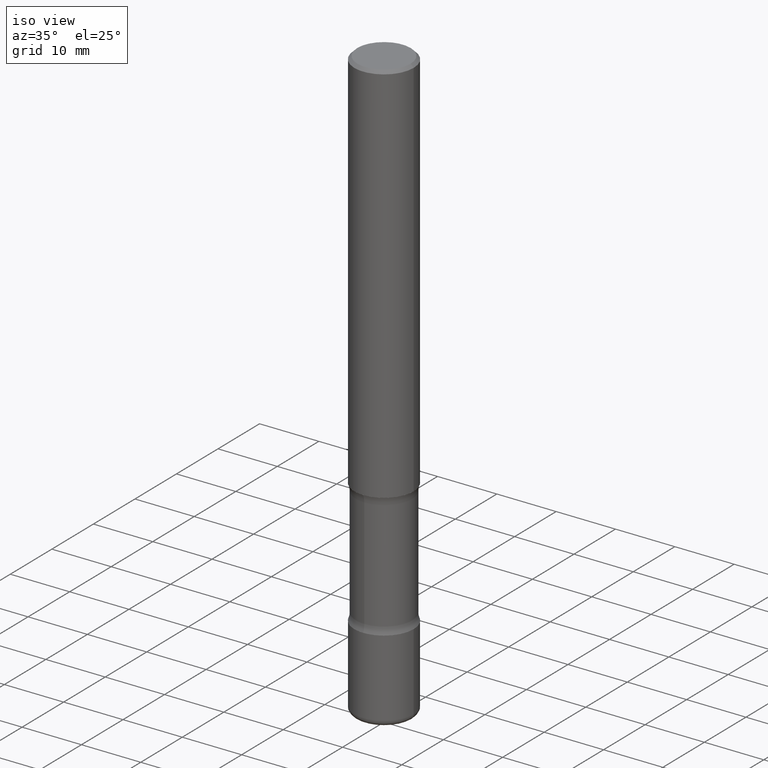
[diagram: clean part render]
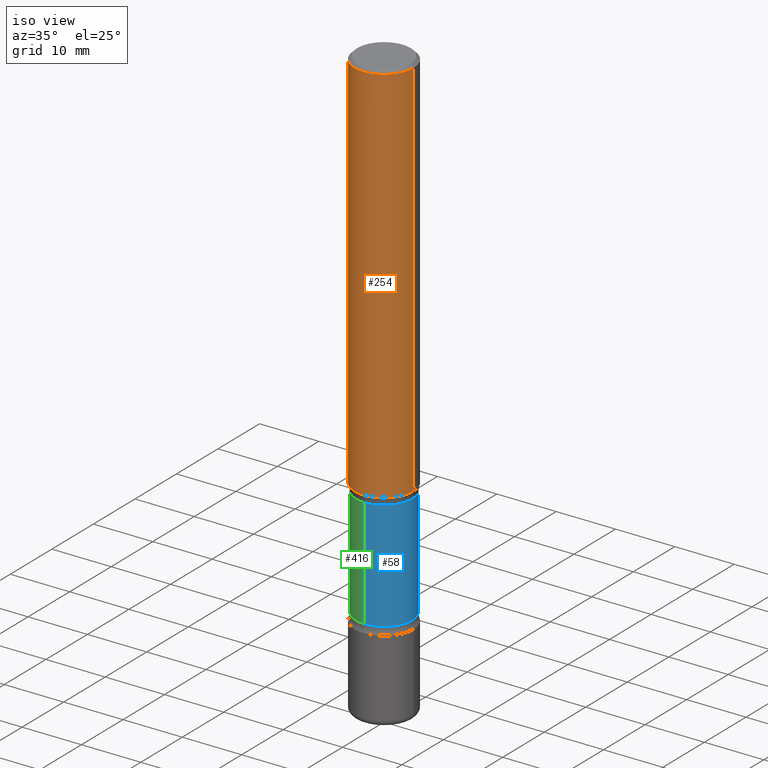
[diagram: same view with three faces highlighted in distinct colors, each labeled with its STEP entity id]
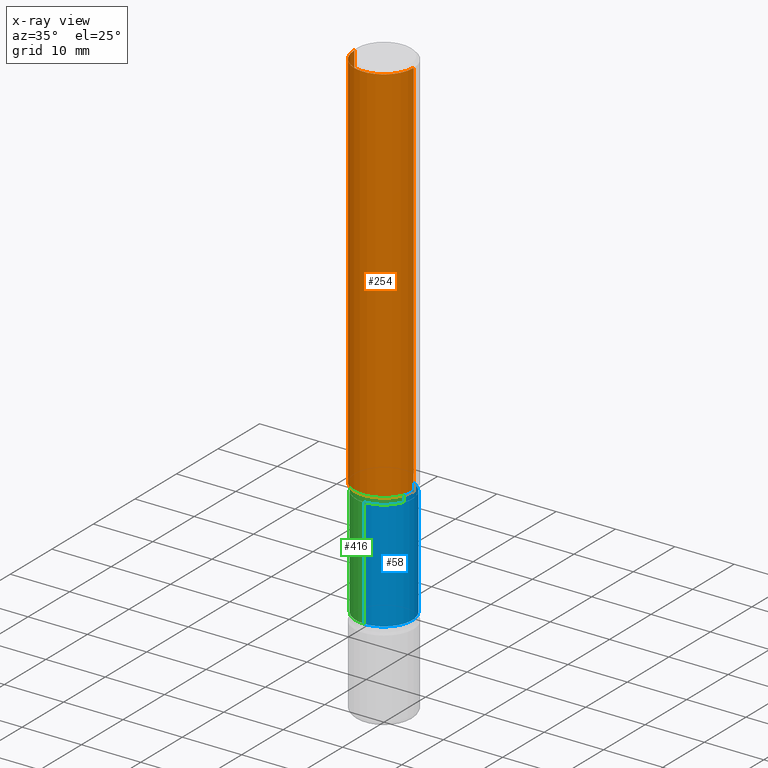
[diagram: x-ray of the same camera — body ghosted, the three highlighted faces saturated]
A machine part, iso view with three faces highlighted in distinct colors.
The next image is the same camera in x-ray (body ghosted, the three faces saturated) — at least one of them is partly hidden behind the body in this view.
Their STEP definitions:

[orange] entity #254 — the highlighted cylindrical surface (edge-blend (fillet) strip) has radius 5 mm, axis along (-0, 0, 1).
#23 = FACE_OUTER_BOUND ( 'NONE', #92, .T. ) ;
#59 = CARTESIAN_POINT ( 'NONE',  ( -0.1968499999999999694, 1.398703375343756999E-15, -9.682923725166782276E-30 ) ) ;
#76 = CARTESIAN_POINT ( 'NONE',  ( 0.1968500000000001082, -1.030929694920215344E-14, -2.559000000000000163 ) ) ;
#83 = VERTEX_POINT ( 'NONE', #318 ) ;
#92 = EDGE_LOOP ( 'NONE', ( #359, #186, #144, #265 ) ) ;
#99 = DIRECTION ( 'NONE',  ( -2.445468806185136877E-29, 3.491481338843145188E-15, 1.000000000000000000 ) ) ;
#112 = DIRECTION ( 'NONE',  ( 1.000000000000000000, -6.982962677686265133E-15, 0.000000000000000000 ) ) ;
#121 = DIRECTION ( 'NONE',  ( -2.445468806185136597E-29, 3.491481338843145583E-15, 1.000000000000000000 ) ) ;
#144 = ORIENTED_EDGE ( 'NONE', *, *, #158, .T. ) ;
#151 = VECTOR ( 'NONE', #179, 39.37007874015748143 ) ;
#158 = EDGE_CURVE ( 'NONE', #296, #479, #264, .T. ) ;
#168 = CIRCLE ( 'NONE', #243, 0.1968500000000001082 ) ;
#171 = CARTESIAN_POINT ( 'NONE',  ( 0.1968499999999998307, -1.420318657638187938E-15, -0.02000000000000006981 ) ) ;
#179 = DIRECTION ( 'NONE',  ( -2.445468806185136877E-29, 3.491481338843145188E-15, 1.000000000000000000 ) ) ;
#186 = ORIENTED_EDGE ( 'NONE', *, *, #299, .T. ) ;
#198 = DIRECTION ( 'NONE',  ( -2.445468806185136597E-29, 3.491481338843145583E-15, 1.000000000000000000 ) ) ;
#207 = CIRCLE ( 'NONE', #275, 0.1968499999999998307 ) ;
#209 = EDGE_CURVE ( 'NONE', #491, #83, #235, .T. ) ;
#235 = LINE ( 'NONE', #59, #151 ) ;
#243 = AXIS2_PLACEMENT_3D ( 'NONE', #376, #121, #112 ) ;
#254 = ADVANCED_FACE ( 'NONE', ( #23 ), #372, .T. ) ;
#256 = EDGE_CURVE ( 'NONE', #83, #479, #207, .T. ) ;
#264 = LINE ( 'NONE', #453, #554 ) ;
#265 = ORIENTED_EDGE ( 'NONE', *, *, #256, .F. ) ;
#275 = AXIS2_PLACEMENT_3D ( 'NONE', #375, #510, #546 ) ;
#296 = VERTEX_POINT ( 'NONE', #76 ) ;
#299 = EDGE_CURVE ( 'NONE', #491, #296, #168, .T. ) ;
#318 = CARTESIAN_POINT ( 'NONE',  ( -0.1968499999999998307, 1.304766576325677324E-15, -0.02000000000000006981 ) ) ;
#323 = DIRECTION ( 'NONE',  ( 1.000000000000000000, -6.982962677686266711E-15, 4.876176775795935793E-29 ) ) ;
#359 = ORIENTED_EDGE ( 'NONE', *, *, #209, .F. ) ;
#372 = CYLINDRICAL_SURFACE ( 'NONE', #384, 0.1968499999999999694 ) ;
#375 = CARTESIAN_POINT ( 'NONE',  ( 4.890937612370289799E-31, -6.982962677686315028E-17, -0.02000000000000006981 ) ) ;
#376 = CARTESIAN_POINT ( 'NONE',  ( 6.257954675027765161E-29, -8.934700746099610252E-15, -2.559000000000000163 ) ) ;
#384 = AXIS2_PLACEMENT_3D ( 'NONE', #456, #198, #323 ) ;
#453 = CARTESIAN_POINT ( 'NONE',  ( 0.1968499999999999694, -1.374596203102541411E-15, 9.598753983154298056E-30 ) ) ;
#456 = CARTESIAN_POINT ( 'NONE',  ( 0.000000000000000000, 0.000000000000000000, 0.000000000000000000 ) ) ;
#479 = VERTEX_POINT ( 'NONE', #171 ) ;
#491 = VERTEX_POINT ( 'NONE', #516 ) ;
#510 = DIRECTION ( 'NONE',  ( -2.445468806185136597E-29, 3.491481338843145583E-15, 1.000000000000000000 ) ) ;
#516 = CARTESIAN_POINT ( 'NONE',  ( -0.1968500000000001082, -3.103561811094476227E-15, -2.559000000000000163 ) ) ;
#546 = DIRECTION ( 'NONE',  ( 1.000000000000000000, -6.982962677686266711E-15, 0.000000000000000000 ) ) ;
#554 = VECTOR ( 'NONE', #99, 39.37007874015748143 ) ;

[blue] entity #58 — the highlighted cylindrical surface (edge-blend (fillet) strip) has radius 4.7409 mm, axis along (0, -0, -1).
#15 = AXIS2_PLACEMENT_3D ( 'NONE', #478, #251, #34 ) ;
#34 = DIRECTION ( 'NONE',  ( 6.982962677686266711E-15, 1.000000000000000000, -2.927241354046892304E-15 ) ) ;
#38 = VERTEX_POINT ( 'NONE', #153 ) ;
#58 = ADVANCED_FACE ( 'NONE', ( #430 ), #539, .T. ) ;
#64 = VECTOR ( 'NONE', #439, 39.37007874015748143 ) ;
#85 = ORIENTED_EDGE ( 'NONE', *, *, #346, .T. ) ;
#119 = DIRECTION ( 'NONE',  ( 6.982962677686266711E-15, 1.000000000000000000, -2.927241354046892699E-15 ) ) ;
#124 = VERTEX_POINT ( 'NONE', #229 ) ;
#134 = DIRECTION ( 'NONE',  ( 2.591588243807108620E-29, -3.282229987566573640E-15, -1.000000000000000000 ) ) ;
#153 = CARTESIAN_POINT ( 'NONE',  ( -1.315500491072608935E-15, -0.1866500000000116399, -3.336343352317407529 ) ) ;
#173 = CARTESIAN_POINT ( 'NONE',  ( 1.303369983790223149E-15, 0.1866499999999883530, -3.336343352317408861 ) ) ;
#199 = VECTOR ( 'NONE', #387, 39.37007874015748143 ) ;
#202 = CARTESIAN_POINT ( 'NONE',  ( 9.708351723968114409E-29, -1.363062268620181708E-14, -3.937000000000000277 ) ) ;
#211 = LINE ( 'NONE', #468, #199 ) ;
#217 = CARTESIAN_POINT ( 'NONE',  ( 8.151697017269320442E-29, -1.165912942494680306E-14, -3.336343352317407973 ) ) ;
#224 = EDGE_LOOP ( 'NONE', ( #85, #410, #349, #540 ) ) ;
#229 = CARTESIAN_POINT ( 'NONE',  ( -1.315500491072630234E-15, -0.1866500000000093362, -2.608456647682591889 ) ) ;
#248 = AXIS2_PLACEMENT_3D ( 'NONE', #202, #134, #119 ) ;
#251 = DIRECTION ( 'NONE',  ( 2.591588243807108620E-29, -3.282229987566573640E-15, -1.000000000000000000 ) ) ;
#258 = CIRCLE ( 'NONE', #15, 0.1866500000000000659 ) ;
#297 = DIRECTION ( 'NONE',  ( 6.982962677686266711E-15, 1.000000000000000000, -2.927241354046893093E-15 ) ) ;
#298 = VERTEX_POINT ( 'NONE', #548 ) ;
#309 = AXIS2_PLACEMENT_3D ( 'NONE', #217, #519, #297 ) ;
#339 = LINE ( 'NONE', #514, #64 ) ;
#346 = EDGE_CURVE ( 'NONE', #298, #124, #258, .T. ) ;
#349 = ORIENTED_EDGE ( 'NONE', *, *, #377, .F. ) ;
#377 = EDGE_CURVE ( 'NONE', #483, #38, #404, .T. ) ;
#387 = DIRECTION ( 'NONE',  ( 2.591588243807108620E-29, -3.282229987566573640E-15, -1.000000000000000000 ) ) ;
#404 = CIRCLE ( 'NONE', #309, 0.1866500000000000103 ) ;
#410 = ORIENTED_EDGE ( 'NONE', *, *, #426, .T. ) ;
#426 = EDGE_CURVE ( 'NONE', #124, #38, #211, .T. ) ;
#430 = FACE_OUTER_BOUND ( 'NONE', #224, .T. ) ;
#439 = DIRECTION ( 'NONE',  ( 2.591588243807108620E-29, -3.282229987566573640E-15, -1.000000000000000000 ) ) ;
#468 = CARTESIAN_POINT ( 'NONE',  ( -1.280511951283959495E-15, -0.1866500000000136661, -3.936999999999999389 ) ) ;
#478 = CARTESIAN_POINT ( 'NONE',  ( 6.265314390714234203E-29, -9.270037855443396476E-15, -2.608456647682592333 ) ) ;
#483 = VERTEX_POINT ( 'NONE', #173 ) ;
#514 = CARTESIAN_POINT ( 'NONE',  ( 1.303369983790238926E-15, 0.1866499999999864101, -3.937000000000000721 ) ) ;
#519 = DIRECTION ( 'NONE',  ( 2.591588243807108620E-29, -3.282229987566573640E-15, -1.000000000000000000 ) ) ;
#536 = EDGE_CURVE ( 'NONE', #298, #483, #339, .T. ) ;
#539 = CYLINDRICAL_SURFACE ( 'NONE', #248, 0.1866500000000000381 ) ;
#540 = ORIENTED_EDGE ( 'NONE', *, *, #536, .F. ) ;
#548 = CARTESIAN_POINT ( 'NONE',  ( 1.303369983790204808E-15, 0.1866499999999908233, -2.608456647682592777 ) ) ;

[green] entity #416 — the highlighted cylindrical surface (edge-blend (fillet) strip) has radius 4.7409 mm, axis along (0, -0, -1).
#8 = ORIENTED_EDGE ( 'NONE', *, *, #105, .F. ) ;
#36 = CYLINDRICAL_SURFACE ( 'NONE', #420, 0.1866500000000000381 ) ;
#38 = VERTEX_POINT ( 'NONE', #153 ) ;
#62 = DIRECTION ( 'NONE',  ( 2.591588243807108620E-29, -3.282229987566573640E-15, -1.000000000000000000 ) ) ;
#64 = VECTOR ( 'NONE', #439, 39.37007874015748143 ) ;
#88 = DIRECTION ( 'NONE',  ( 2.591588243807108620E-29, -3.282229987566573640E-15, -1.000000000000000000 ) ) ;
#93 = CARTESIAN_POINT ( 'NONE',  ( 8.151697017269320442E-29, -1.165912942494680306E-14, -3.336343352317407973 ) ) ;
#105 = EDGE_CURVE ( 'NONE', #38, #483, #266, .T. ) ;
#124 = VERTEX_POINT ( 'NONE', #229 ) ;
#146 = EDGE_LOOP ( 'NONE', ( #303, #345, #341, #8 ) ) ;
#153 = CARTESIAN_POINT ( 'NONE',  ( -1.315500491072608935E-15, -0.1866500000000116399, -3.336343352317407529 ) ) ;
#173 = CARTESIAN_POINT ( 'NONE',  ( 1.303369983790223149E-15, 0.1866499999999883530, -3.336343352317408861 ) ) ;
#189 = AXIS2_PLACEMENT_3D ( 'NONE', #338, #423, #512 ) ;
#199 = VECTOR ( 'NONE', #387, 39.37007874015748143 ) ;
#211 = LINE ( 'NONE', #468, #199 ) ;
#215 = CARTESIAN_POINT ( 'NONE',  ( 9.708351723968114409E-29, -1.363062268620181708E-14, -3.937000000000000277 ) ) ;
#229 = CARTESIAN_POINT ( 'NONE',  ( -1.315500491072630234E-15, -0.1866500000000093362, -2.608456647682591889 ) ) ;
#259 = DIRECTION ( 'NONE',  ( 6.982962677686266711E-15, 1.000000000000000000, -2.927241354046892699E-15 ) ) ;
#266 = CIRCLE ( 'NONE', #392, 0.1866500000000000103 ) ;
#276 = CIRCLE ( 'NONE', #189, 0.1866500000000000659 ) ;
#298 = VERTEX_POINT ( 'NONE', #548 ) ;
#303 = ORIENTED_EDGE ( 'NONE', *, *, #426, .F. ) ;
#338 = CARTESIAN_POINT ( 'NONE',  ( 6.265314390714234203E-29, -9.270037855443396476E-15, -2.608456647682592333 ) ) ;
#339 = LINE ( 'NONE', #514, #64 ) ;
#341 = ORIENTED_EDGE ( 'NONE', *, *, #536, .T. ) ;
#344 = FACE_OUTER_BOUND ( 'NONE', #146, .T. ) ;
#345 = ORIENTED_EDGE ( 'NONE', *, *, #518, .T. ) ;
#387 = DIRECTION ( 'NONE',  ( 2.591588243807108620E-29, -3.282229987566573640E-15, -1.000000000000000000 ) ) ;
#392 = AXIS2_PLACEMENT_3D ( 'NONE', #93, #62, #528 ) ;
#416 = ADVANCED_FACE ( 'NONE', ( #344 ), #36, .T. ) ;
#420 = AXIS2_PLACEMENT_3D ( 'NONE', #215, #88, #259 ) ;
#423 = DIRECTION ( 'NONE',  ( 2.591588243807108620E-29, -3.282229987566573640E-15, -1.000000000000000000 ) ) ;
#426 = EDGE_CURVE ( 'NONE', #124, #38, #211, .T. ) ;
#439 = DIRECTION ( 'NONE',  ( 2.591588243807108620E-29, -3.282229987566573640E-15, -1.000000000000000000 ) ) ;
#468 = CARTESIAN_POINT ( 'NONE',  ( -1.280511951283959495E-15, -0.1866500000000136661, -3.936999999999999389 ) ) ;
#483 = VERTEX_POINT ( 'NONE', #173 ) ;
#512 = DIRECTION ( 'NONE',  ( 6.982962677686266711E-15, 1.000000000000000000, -2.927241354046892304E-15 ) ) ;
#514 = CARTESIAN_POINT ( 'NONE',  ( 1.303369983790238926E-15, 0.1866499999999864101, -3.937000000000000721 ) ) ;
#518 = EDGE_CURVE ( 'NONE', #124, #298, #276, .T. ) ;
#528 = DIRECTION ( 'NONE',  ( 6.982962677686266711E-15, 1.000000000000000000, -2.927241354046893093E-15 ) ) ;
#536 = EDGE_CURVE ( 'NONE', #298, #483, #339, .T. ) ;
#548 = CARTESIAN_POINT ( 'NONE',  ( 1.303369983790204808E-15, 0.1866499999999908233, -2.608456647682592777 ) ) ;